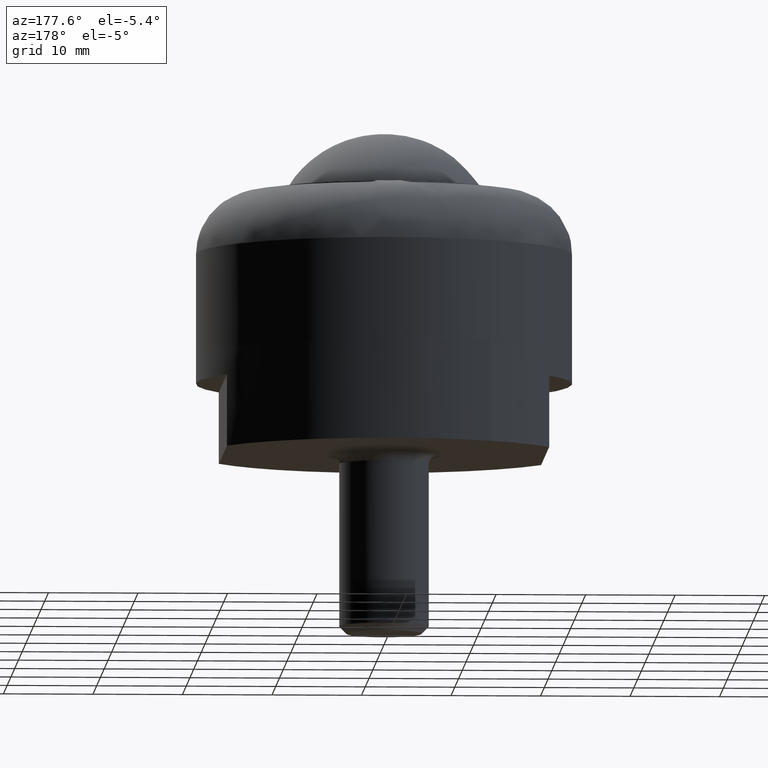
[diagram: clean part render]
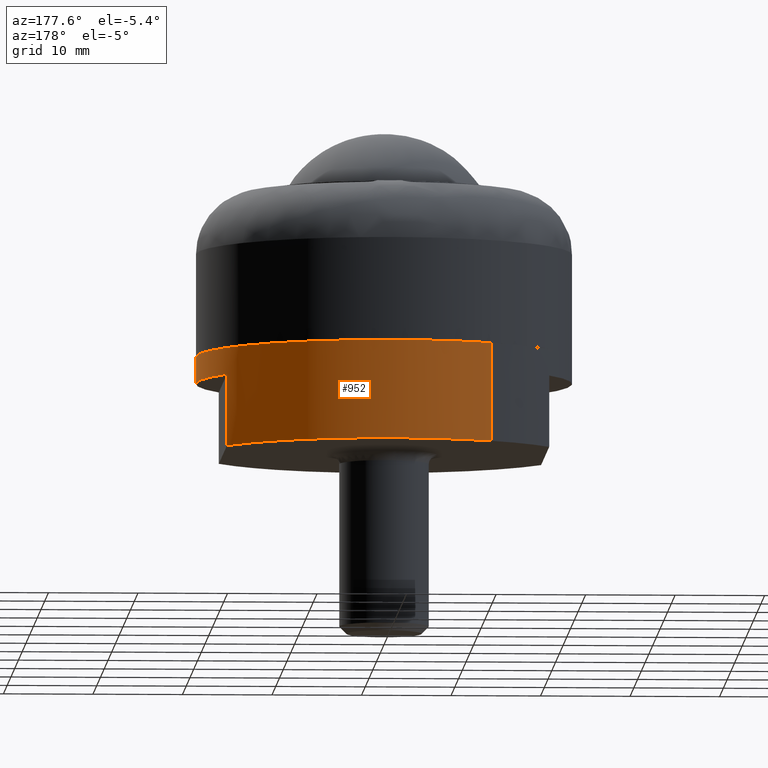
[diagram: same view with one face highlighted and labeled with its STEP entity id]
A machine part, auxiliary view. The second image highlights one B-rep face of the part: STEP entity #952.
In plain terms, the highlighted face is a freeform B-spline surface patch.
Its self-contained STEP definition (entity closure, byte-faithful):
#599=CARTESIAN_POINT('',(18.0,10.816653826392120,-2.999999999999890));
#600=VERTEX_POINT('',#599);
#601=CARTESIAN_POINT('',(18.0,-10.816653826392100,-2.999999999999890));
#602=VERTEX_POINT('',#601);
#603=CARTESIAN_POINT('',(18.0,10.816653826392120,-2.999999999999890));
#604=CARTESIAN_POINT('',(18.670759108483239,9.700695220632380,-2.999999999999889));
#605=CARTESIAN_POINT('',(19.559021486917501,7.852428526247473,-2.999999999999918));
#606=CARTESIAN_POINT('',(20.326352195070250,5.391215346225279,-2.999999999999875));
#607=CARTESIAN_POINT('',(20.835876532031850,3.017014251339420,-2.999999999999917));
#608=CARTESIAN_POINT('',(21.073040869008210,0.414907379283729,-2.999999999999872));
#609=CARTESIAN_POINT('',(20.912261499196131,-2.397727592043336,-2.999999999999899));
#610=CARTESIAN_POINT('',(20.431313082996599,-5.111282247536606,-2.999999999999952));
#611=CARTESIAN_POINT('',(19.544746717360791,-7.912858846364462,-2.999999999999746));
#612=CARTESIAN_POINT('',(18.564003318461829,-9.878214529805019,-3.000000000000012));
#613=CARTESIAN_POINT('',(18.0,-10.816653826392100,-2.999999999999890));
#614=B_SPLINE_CURVE_WITH_KNOTS('',3,(#603,#604,#605,#606,#607,#608,#609,#610,#611,#612,#613),.UNSPECIFIED.,.F.,.U.,(4,1,1,1,1,1,1,1,4),(0.000000011712366,3.906061940942948,6.125421615283450,7.723361823332208,11.185561935837850,13.937550136750581,16.156903265766051,19.441553524178179,22.726197012007120),.UNSPECIFIED.);
#615=EDGE_CURVE('',#600,#602,#614,.T.);
#671=CARTESIAN_POINT('',(-11.282451241010310,17.711755813420240,-11.0));
#672=VERTEX_POINT('',#671);
#682=CARTESIAN_POINT('',(18.0,10.816653826392120,-11.0));
#683=VERTEX_POINT('',#682);
#684=CARTESIAN_POINT('',(-11.282451241010310,17.711755813420240,-11.0));
#685=CARTESIAN_POINT('',(-10.398617312491551,18.274826690416649,-10.999999999999959));
#686=CARTESIAN_POINT('',(-8.893696775384891,19.081929295308569,-11.000000000000080));
#687=CARTESIAN_POINT('',(-6.245383612033816,20.111283945079698,-10.999999999999970));
#688=CARTESIAN_POINT('',(-3.523901937065317,20.785427793773000,-11.000000000000020));
#689=CARTESIAN_POINT('',(-0.428277141133890,21.064720138941109,-10.999999999999950));
#690=CARTESIAN_POINT('',(2.194450967612887,20.932517482576081,-11.000000000000030));
#691=CARTESIAN_POINT('',(4.393224825115886,20.564630318690352,-11.0));
#692=CARTESIAN_POINT('',(6.295807054611958,20.066226619374220,-10.999999999999931));
#693=CARTESIAN_POINT('',(8.349411166808249,19.317158596224409,-11.000000000000840));
#694=CARTESIAN_POINT('',(10.268348863708191,18.361492877737820,-10.999999999998170));
#695=CARTESIAN_POINT('',(12.076907587448479,17.215008132835599,-11.000000000001290));
#696=CARTESIAN_POINT('',(13.844598225997730,15.856058308935250,-10.999999999999170));
#697=CARTESIAN_POINT('',(15.973060839159910,13.775816327433050,-11.000000000000680));
#698=CARTESIAN_POINT('',(17.325401745393251,11.939546374738210,-10.999999999999639));
#699=CARTESIAN_POINT('',(18.0,10.816653826392120,-11.0));
#700=B_SPLINE_CURVE_WITH_KNOTS('',3,(#684,#685,#686,#687,#688,#689,#690,#691,#692,#693,#694,#695,#696,#697,#698,#699),.UNSPECIFIED.,.F.,.U.,(4,1,1,1,1,1,1,1,1,1,1,1,1,4),(8.026952E-009,3.143861628440341,5.108771982977832,8.514635629874920,11.527508196404440,14.409394490735821,16.374311669926101,18.208204599374000,20.304128888278989,22.924014369826320,24.626944645822810,26.722859023062242,29.604736216550450,33.534562732802009),.UNSPECIFIED.);
#701=EDGE_CURVE('',#672,#683,#700,.T.);
#703=CARTESIAN_POINT('',(18.0,-10.816653826392100,-11.0));
#704=VERTEX_POINT('',#703);
#710=CARTESIAN_POINT('',(11.282451241010230,-17.711755813420250,-11.0));
#711=VERTEX_POINT('',#710);
#712=CARTESIAN_POINT('',(18.0,-10.816653826392100,-11.0));
#713=CARTESIAN_POINT('',(17.296623862411732,-11.987496471982819,-11.0));
#714=CARTESIAN_POINT('',(15.978346586509900,-13.762526921774731,-11.0));
#715=CARTESIAN_POINT('',(13.661092788767800,-16.031812591523462,-11.0));
#716=CARTESIAN_POINT('',(12.157141990503860,-17.154644733665929,-11.000000000000041));
#717=CARTESIAN_POINT('',(11.282451241010230,-17.711755813420250,-11.0));
#718=B_SPLINE_CURVE_WITH_KNOTS('',3,(#712,#713,#714,#715,#716,#717),.UNSPECIFIED.,.F.,.U.,(4,1,1,4),(1.917311E-009,4.097575859321020,6.601641975320716,9.712762553861989),.UNSPECIFIED.);
#719=EDGE_CURVE('',#704,#711,#718,.T.);
#757=CARTESIAN_POINT('',(18.0,-10.816653826392100,-11.0));
#758=CARTESIAN_POINT('',(18.0,-10.816653826392100,-2.999999999999890));
#759=QUASI_UNIFORM_CURVE('',1,(#757,#758),.UNSPECIFIED.,.F.,.U.);
#760=EDGE_CURVE('',#704,#602,#759,.T.);
#763=CARTESIAN_POINT('',(18.0,10.816653826392120,-11.0));
#764=CARTESIAN_POINT('',(18.0,10.816653826392120,-2.999999999999890));
#765=QUASI_UNIFORM_CURVE('',1,(#763,#764),.UNSPECIFIED.,.F.,.U.);
#766=EDGE_CURVE('',#683,#600,#765,.T.);
#811=CARTESIAN_POINT('',(-11.282451234374360,17.711755817647390,1.942890E-016));
#812=VERTEX_POINT('',#811);
#827=CARTESIAN_POINT('',(-11.282451241010310,17.711755813420240,-11.0));
#828=CARTESIAN_POINT('',(-11.282451234374360,17.711755817647390,1.942890E-016));
#829=QUASI_UNIFORM_CURVE('',1,(#827,#828),.UNSPECIFIED.,.F.,.U.);
#830=EDGE_CURVE('',#672,#812,#829,.T.);
#837=CARTESIAN_POINT('',(11.282451234374260,-17.711755817647362,1.942890E-016));
#838=VERTEX_POINT('',#837);
#839=CARTESIAN_POINT('',(11.282451241010230,-17.711755813420250,-11.0));
#840=CARTESIAN_POINT('',(11.282451234374260,-17.711755817647362,1.942890E-016));
#841=QUASI_UNIFORM_CURVE('',1,(#839,#840),.UNSPECIFIED.,.F.,.U.);
#842=EDGE_CURVE('',#711,#838,#841,.T.);
#879=CARTESIAN_POINT('',(11.282451226334370,-17.711755822768790,-11.275000000000000));
#880=CARTESIAN_POINT('',(28.994207049103167,-6.429304596434367,-11.275000000000004));
#881=CARTESIAN_POINT('',(17.711755822768751,11.282451226334439,-11.275000000000000));
#882=CARTESIAN_POINT('',(6.429304596434329,28.994207049103238,-11.275000000000004));
#883=CARTESIAN_POINT('',(-11.282451226334469,17.711755822768819,-11.275000000000000));
#884=CARTESIAN_POINT('',(11.282451226334370,-17.711755822768790,0.281874999999999));
#885=CARTESIAN_POINT('',(28.994207049103167,-6.429304596434367,0.281874999999999));
#886=CARTESIAN_POINT('',(17.711755822768751,11.282451226334439,0.281874999999999));
#887=CARTESIAN_POINT('',(6.429304596434329,28.994207049103238,0.281874999999999));
#888=CARTESIAN_POINT('',(-11.282451226334469,17.711755822768819,0.281874999999999));
#896=(BOUNDED_SURFACE()B_SPLINE_SURFACE(2,1,((#879,#884),(#880,#885),(#881,#886),(#882,#887),(#883,#888)),.UNSPECIFIED.,.F.,.F.,.U.)B_SPLINE_SURFACE_WITH_KNOTS((3,2,3),(2,2),(0.0,34.793939239339963,69.587878478679926),(0.0,11.556875000000000),.UNSPECIFIED.)GEOMETRIC_REPRESENTATION_ITEM()RATIONAL_B_SPLINE_SURFACE(((1.0,1.0),(0.707106781186548,0.707106781186548),(1.0,1.0),(0.707106781186548,0.707106781186548),(1.0,1.0)))REPRESENTATION_ITEM('')SURFACE());
#897=CARTESIAN_POINT('',(-2.486900E-014,21.000000000000011,0.0));
#898=VERTEX_POINT('',#897);
#899=CARTESIAN_POINT('',(-11.282451234374360,17.711755817647390,1.942890E-016));
#900=CARTESIAN_POINT('',(-10.183762894987460,18.411821219859370,1.753691E-016));
#901=CARTESIAN_POINT('',(-8.548420551962465,19.250742303430979,1.472078E-016));
#902=CARTESIAN_POINT('',(-5.917934751700201,20.191355359283691,1.019096E-016));
#903=CARTESIAN_POINT('',(-3.318893308918317,20.819333461468311,5.715288E-017));
#904=CARTESIAN_POINT('',(-1.178684049684933,21.000092663308990,2.029748E-017));
#905=CARTESIAN_POINT('',(-2.486900E-014,21.000000000000011,0.0));
#906=B_SPLINE_CURVE_WITH_KNOTS('',3,(#899,#900,#901,#902,#903,#904,#905),.UNSPECIFIED.,.F.,.U.,(4,1,1,1,4),(3.194502E-009,3.908261869073456,5.490179542392443,8.374840833706106,11.910885284244740),.UNSPECIFIED.);
#907=EDGE_CURVE('',#812,#898,#906,.T.);
#908=ORIENTED_EDGE('',*,*,#907,.T.);
#909=CARTESIAN_POINT('',(20.999999999999950,1.421085E-014,0.0));
#910=VERTEX_POINT('',#909);
#911=CARTESIAN_POINT('',(-2.486900E-014,21.000000000000011,0.0));
#912=CARTESIAN_POINT('',(1.374462265256210,21.000199312246000,0.0));
#913=CARTESIAN_POINT('',(3.350146773921537,20.805291647928669,0.0));
#914=CARTESIAN_POINT('',(6.440859798247358,20.051276959276919,0.0));
#915=CARTESIAN_POINT('',(9.135701293653570,19.011779552501491,0.0));
#916=CARTESIAN_POINT('',(11.773429884929950,17.463530734937748,0.0));
#917=CARTESIAN_POINT('',(14.147300694928081,15.610957206656780,0.0));
#918=CARTESIAN_POINT('',(16.277657855617299,13.414296283419260,0.0));
#919=CARTESIAN_POINT('',(17.999196613770380,10.937679192592350,0.0));
#920=CARTESIAN_POINT('',(19.082109559110538,8.834548596416520,0.0));
#921=CARTESIAN_POINT('',(19.908547207509748,6.804296355959767,0.0));
#922=CARTESIAN_POINT('',(20.520051180417241,4.695654254806149,0.0));
#923=CARTESIAN_POINT('',(20.916884074073860,2.276416399191126,0.0));
#924=CARTESIAN_POINT('',(21.000018535300072,0.773121894081481,0.0));
#925=CARTESIAN_POINT('',(20.999999999999950,1.421085E-014,0.0));
#926=B_SPLINE_CURVE_WITH_KNOTS('',3,(#911,#912,#913,#914,#915,#916,#917,#918,#919,#920,#921,#922,#923,#924,#925),.UNSPECIFIED.,.F.,.U.,(4,1,1,1,1,1,1,1,1,1,1,1,4),(9.842594E-009,4.123337786593122,5.927305696471780,9.535242470173529,12.756617502382440,15.075994801257661,18.555044051119381,21.905278922894631,24.095807080569021,25.642063450664988,28.476869671312521,30.667407336126178,32.986774609285959),.UNSPECIFIED.);
#927=EDGE_CURVE('',#898,#910,#926,.T.);
#928=ORIENTED_EDGE('',*,*,#927,.T.);
#929=CARTESIAN_POINT('',(20.999999999999950,1.421085E-014,0.0));
#930=CARTESIAN_POINT('',(21.000103834774809,-1.207474965914760,1.324539E-017));
#931=CARTESIAN_POINT('',(20.814865617912879,-3.347959406500112,3.672543E-017));
#932=CARTESIAN_POINT('',(20.117760018085480,-6.207080504021172,6.808854E-017));
#933=CARTESIAN_POINT('',(19.191456184371951,-8.648514787968784,9.486985E-017));
#934=CARTESIAN_POINT('',(18.043857704950710,-10.841024767675730,1.189206E-016));
#935=CARTESIAN_POINT('',(16.752325217269821,-12.721653113005949,1.395501E-016));
#936=CARTESIAN_POINT('',(15.386948014992671,-14.336942545910450,1.572690E-016));
#937=CARTESIAN_POINT('',(13.659378951962610,-16.028872152933690,1.758286E-016));
#938=CARTESIAN_POINT('',(12.208310540004430,-17.122062991331259,1.878204E-016));
#939=CARTESIAN_POINT('',(11.282451234374260,-17.711755817647362,1.942890E-016));
#940=B_SPLINE_CURVE_WITH_KNOTS('',3,(#929,#930,#931,#932,#933,#934,#935,#936,#937,#938,#939),.UNSPECIFIED.,.F.,.U.,(4,1,1,1,1,1,1,1,4),(9.492847E-009,3.622411327078837,6.421553359962397,8.809059804152849,11.443521761917751,13.831030199334609,15.642240158700330,17.782761037047539,21.075860819471039),.UNSPECIFIED.);
#941=EDGE_CURVE('',#910,#838,#940,.T.);
#942=ORIENTED_EDGE('',*,*,#941,.T.);
#943=ORIENTED_EDGE('',*,*,#842,.F.);
#944=ORIENTED_EDGE('',*,*,#719,.F.);
#945=ORIENTED_EDGE('',*,*,#760,.T.);
#946=ORIENTED_EDGE('',*,*,#615,.F.);
#947=ORIENTED_EDGE('',*,*,#766,.F.);
#948=ORIENTED_EDGE('',*,*,#701,.F.);
#949=ORIENTED_EDGE('',*,*,#830,.T.);
#950=EDGE_LOOP('',(#908,#928,#942,#943,#944,#945,#946,#947,#948,#949));
#951=FACE_OUTER_BOUND('',#950,.T.);
#952=ADVANCED_FACE('',(#951),#896,.T.);